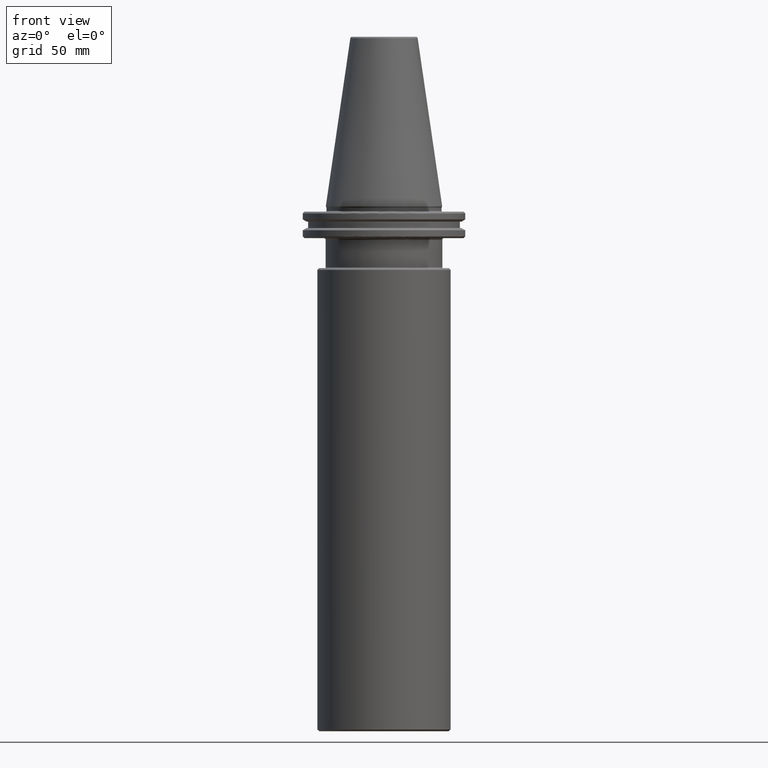
[diagram: clean part render]
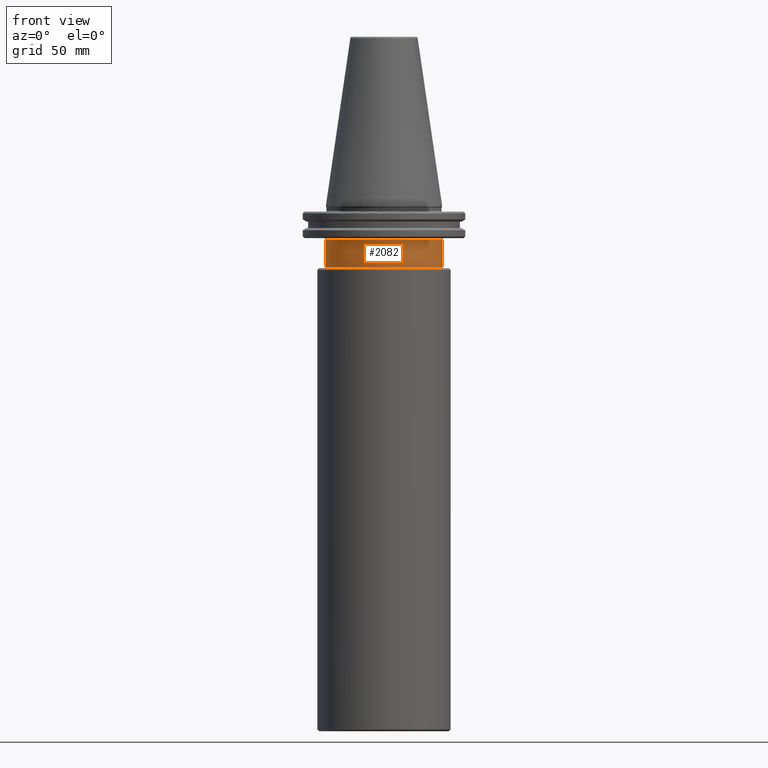
[diagram: same view with one face highlighted and labeled with its STEP entity id]
A machine part, front view. The second image highlights one B-rep face of the part: STEP entity #2082.
In plain terms, the highlighted cylindrical surface (partial cylindrical patch) has radius 35 mm, axis along (0, 0, 1).
Its self-contained STEP definition (entity closure, byte-faithful):
#86 = VERTEX_POINT ( 'NONE', #2530 ) ;
#220 = CARTESIAN_POINT ( 'NONE',  ( 0.0000000000000000000, 0.0000000000000000000, -20.10000000000000900 ) ) ;
#250 = CIRCLE ( 'NONE', #464, 35.00000000000000000 ) ;
#284 = CARTESIAN_POINT ( 'NONE',  ( 34.89870360348054800, -2.662621122924722100, -20.01846494887274400 ) ) ;
#305 = CARTESIAN_POINT ( 'NONE',  ( 34.73151503273771100, -4.326909716878441600, -20.07497892911401000 ) ) ;
#464 = AXIS2_PLACEMENT_3D ( 'NONE', #220, #3279, #2727 ) ;
#498 = CARTESIAN_POINT ( 'NONE',  ( 35.00000000000000700, 0.0000000000000000000, -36.60000000000000900 ) ) ;
#515 = CARTESIAN_POINT ( 'NONE',  ( 35.00000000000000000, 0.0000000000000000000, 0.0000000000000000000 ) ) ;
#555 = EDGE_CURVE ( 'NONE', #2254, #1201, #984, .T. ) ;
#583 = CARTESIAN_POINT ( 'NONE',  ( 34.88359934126307800, -2.852206337770925700, -20.02488322715947100 ) ) ;
#585 = EDGE_CURVE ( 'NONE', #646, #86, #1678, .T. ) ;
#592 = CARTESIAN_POINT ( 'NONE',  ( 34.72759273136051000, -4.358246945429421300, -20.07591857344893400 ) ) ;
#617 = ORIENTED_EDGE ( 'NONE', *, *, #555, .F. ) ;
#629 = B_SPLINE_CURVE_WITH_KNOTS ( 'NONE', 3,
 ( #2861, #843, #1450, #3381, #1750, #3617, #2044, #284, #2318, #583, #2605, #859, #2869, #1171, #3117, #1465, #3395, #1766, #3627, #2056, #305, #2331, #592, #2618, #876, #2883, #1182, #3138, #1479, #3406 ),
 .UNSPECIFIED., .F., .F.,
 ( 4, 2, 2, 1, 1, 1, 1, 1, 2, 2, 2, 2, 1, 1, 1, 1, 1, 2, 2, 4 ),
 ( 0.0000000000000000000, 0.2500000000000431900, 0.3750000000000648900, 0.4375000000000757700, 0.4687500000000812100, 0.4843750000000839900, 0.4921875000000853200, 0.4960937500000859300, 0.4980468750000862100, 0.5000000000000864900, 0.6250000000001061400, 0.6875000000001163500, 0.7187500000001206800, 0.7343750000001225700, 0.7421875000001233500, 0.7460937500001232300, 0.7480468750001232300, 0.7490234375001225700, 0.7500000000001220100, 1.000000000000000000 ),
 .UNSPECIFIED. ) ;
#646 = VERTEX_POINT ( 'NONE', #498 ) ;
#843 = CARTESIAN_POINT ( 'NONE',  ( 35.00000000000001400, -0.3856537100443946900, -19.96602540378444200 ) ) ;
#859 = CARTESIAN_POINT ( 'NONE',  ( 34.87983400856251100, -2.897792357155766700, -20.02645766834392300 ) ) ;
#863 = CARTESIAN_POINT ( 'NONE',  ( -35.00000000000000000, 4.286263797015736500E-015, -20.10000000000000900 ) ) ;
#876 = CARTESIAN_POINT ( 'NONE',  ( 34.72674585517224700, -4.364988287685670300, -20.07611605916635300 ) ) ;
#883 = VECTOR ( 'NONE', #2023, 1000.000000000000000 ) ;
#932 = ORIENTED_EDGE ( 'NONE', *, *, #585, .T. ) ;
#984 = LINE ( 'NONE', #1184, #2435 ) ;
#1017 = EDGE_CURVE ( 'NONE', #2464, #1201, #250, .T. ) ;
#1120 = DIRECTION ( 'NONE',  ( 0.0000000000000000000, 0.0000000000000000000, 1.000000000000000000 ) ) ;
#1171 = CARTESIAN_POINT ( 'NONE',  ( 34.87883443457501900, -2.909802069476991700, -20.02687419923825400 ) ) ;
#1182 = CARTESIAN_POINT ( 'NONE',  ( 34.72668483079380100, -4.365474235201975100, -20.07613034237943600 ) ) ;
#1184 = CARTESIAN_POINT ( 'NONE',  ( -35.00000000000000000, 4.286263797015736500E-015, 0.0000000000000000000 ) ) ;
#1201 = VERTEX_POINT ( 'NONE', #863 ) ;
#1241 = DIRECTION ( 'NONE',  ( 0.0000000000000000000, 0.0000000000000000000, 1.000000000000000000 ) ) ;
#1295 = ORIENTED_EDGE ( 'NONE', *, *, #3135, .T. ) ;
#1450 = CARTESIAN_POINT ( 'NONE',  ( 34.99373364965287400, -0.8218039013440450200, -19.97111430580969200 ) ) ;
#1465 = CARTESIAN_POINT ( 'NONE',  ( 34.81119208245340200, -3.638692341704852700, -20.05211467372493700 ) ) ;
#1479 = CARTESIAN_POINT ( 'NONE',  ( 34.58412374625839200, -5.396036714860796800, -20.10000000000000900 ) ) ;
#1678 = LINE ( 'NONE', #515, #883 ) ;
#1750 = CARTESIAN_POINT ( 'NONE',  ( 34.95436463499885300, -1.806791428612111600, -19.99274213941700000 ) ) ;
#1766 = CARTESIAN_POINT ( 'NONE',  ( 34.75884817812531900, -4.102335739037073400, -20.06776006642833500 ) ) ;
#1791 = CARTESIAN_POINT ( 'NONE',  ( 34.51388888888891400, -5.813043416785408400, -20.09999989689515900 ) ) ;
#1874 = ORIENTED_EDGE ( 'NONE', *, *, #1017, .T. ) ;
#2023 = DIRECTION ( 'NONE',  ( 0.0000000000000000000, 0.0000000000000000000, 1.000000000000000000 ) ) ;
#2026 = EDGE_LOOP ( 'NONE', ( #617, #2421, #932, #1295, #1874 ) ) ;
#2044 = CARTESIAN_POINT ( 'NONE',  ( 34.91711236467138200, -2.414550110076555200, -20.01039426831707900 ) ) ;
#2056 = CARTESIAN_POINT ( 'NONE',  ( 34.73764725584039300, -4.277549245563328400, -20.07344994284106900 ) ) ;
#2082 = ADVANCED_FACE ( 'NONE', ( #2382 ), #2215, .T. ) ;
#2091 = DIRECTION ( 'NONE',  ( 1.000000000000000000, 0.0000000000000000000, 0.0000000000000000000 ) ) ;
#2215 = CYLINDRICAL_SURFACE ( 'NONE', #3426, 35.00000000000000000 ) ;
#2245 = CARTESIAN_POINT ( 'NONE',  ( 0.0000000000000000000, 0.0000000000000000000, 0.0000000000000000000 ) ) ;
#2254 = VERTEX_POINT ( 'NONE', #3273 ) ;
#2318 = CARTESIAN_POINT ( 'NONE',  ( 34.88876040090946200, -2.788675363912689300, -20.02270901364770900 ) ) ;
#2331 = CARTESIAN_POINT ( 'NONE',  ( 34.72883496120508100, -4.348342361691885900, -20.07562508203917400 ) ) ;
#2382 = FACE_OUTER_BOUND ( 'NONE', #2026, .T. ) ;
#2421 = ORIENTED_EDGE ( 'NONE', *, *, #3251, .T. ) ;
#2435 = VECTOR ( 'NONE', #1120, 1000.000000000000000 ) ;
#2464 = VERTEX_POINT ( 'NONE', #1791 ) ;
#2530 = CARTESIAN_POINT ( 'NONE',  ( 35.00000000253060500, -2.121254816493210000E-012, -19.96602546210936100 ) ) ;
#2605 = CARTESIAN_POINT ( 'NONE',  ( 34.88097084798343400, -2.884097681038793900, -20.02598337919643600 ) ) ;
#2618 = CARTESIAN_POINT ( 'NONE',  ( 34.72699621719531400, -4.362996321106502200, -20.07605792289060500 ) ) ;
#2727 = DIRECTION ( 'NONE',  ( 1.000000000000000000, 0.0000000000000000000, 0.0000000000000000000 ) ) ;
#2861 = CARTESIAN_POINT ( 'NONE',  ( 35.00000000253060500, -2.121254816493210000E-012, -19.96602546210936100 ) ) ;
#2869 = CARTESIAN_POINT ( 'NONE',  ( 34.87907381015386900, -2.906928130501727800, -20.02677448231277100 ) ) ;
#2883 = CARTESIAN_POINT ( 'NONE',  ( 34.72658012368658100, -4.366306603358497200, -20.07615446448049900 ) ) ;
#2942 = CARTESIAN_POINT ( 'NONE',  ( 0.0000000000000000000, 0.0000000000000000000, -36.60000000000000900 ) ) ;
#3117 = CARTESIAN_POINT ( 'NONE',  ( 34.84475593491708200, -3.317405214712208800, -20.04104607443450800 ) ) ;
#3135 = EDGE_CURVE ( 'NONE', #86, #2464, #629, .T. ) ;
#3138 = CARTESIAN_POINT ( 'NONE',  ( 34.65763587665507800, -4.914475286755051200, -20.09206411383005200 ) ) ;
#3200 = DIRECTION ( 'NONE',  ( 1.000000000000000000, 0.0000000000000000000, 0.0000000000000000000 ) ) ;
#3251 = EDGE_CURVE ( 'NONE', #2254, #646, #3509, .T. ) ;
#3273 = CARTESIAN_POINT ( 'NONE',  ( -35.00000000000000700, 4.286263797015737300E-015, -36.60000000000000900 ) ) ;
#3279 = DIRECTION ( 'NONE',  ( -0.0000000000000000000, -0.0000000000000000000, -1.000000000000000000 ) ) ;
#3381 = CARTESIAN_POINT ( 'NONE',  ( 34.96645674047852000, -1.551158313977904200, -19.98638101188543800 ) ) ;
#3395 = CARTESIAN_POINT ( 'NONE',  ( 34.77073643522938100, -4.001335001168134100, -20.06438970207560100 ) ) ;
#3406 = CARTESIAN_POINT ( 'NONE',  ( 34.51388888888891400, -5.813043416785408400, -20.09999989689515900 ) ) ;
#3426 = AXIS2_PLACEMENT_3D ( 'NONE', #2245, #3594, #2091 ) ;
#3484 = AXIS2_PLACEMENT_3D ( 'NONE', #2942, #1241, #3200 ) ;
#3509 = CIRCLE ( 'NONE', #3484, 35.00000000000000700 ) ;
#3594 = DIRECTION ( 'NONE',  ( 0.0000000000000000000, 0.0000000000000000000, 1.000000000000000000 ) ) ;
#3617 = CARTESIAN_POINT ( 'NONE',  ( 34.93048751412268900, -2.208861154862251200, -20.00419216897381200 ) ) ;
#3627 = CARTESIAN_POINT ( 'NONE',  ( 34.74418861495205100, -4.224100943996635500, -20.07173364531119500 ) ) ;